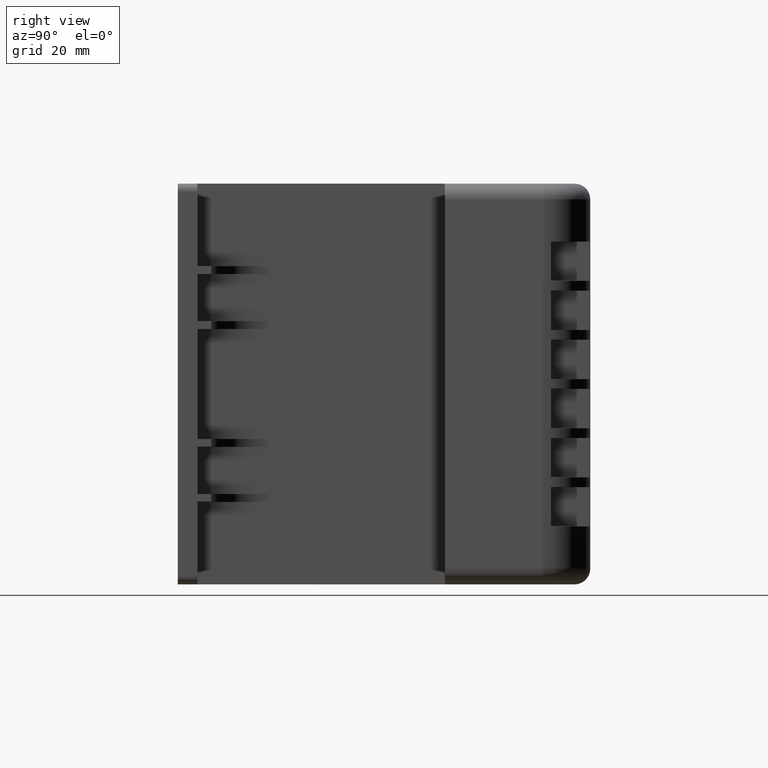
[diagram: clean part render]
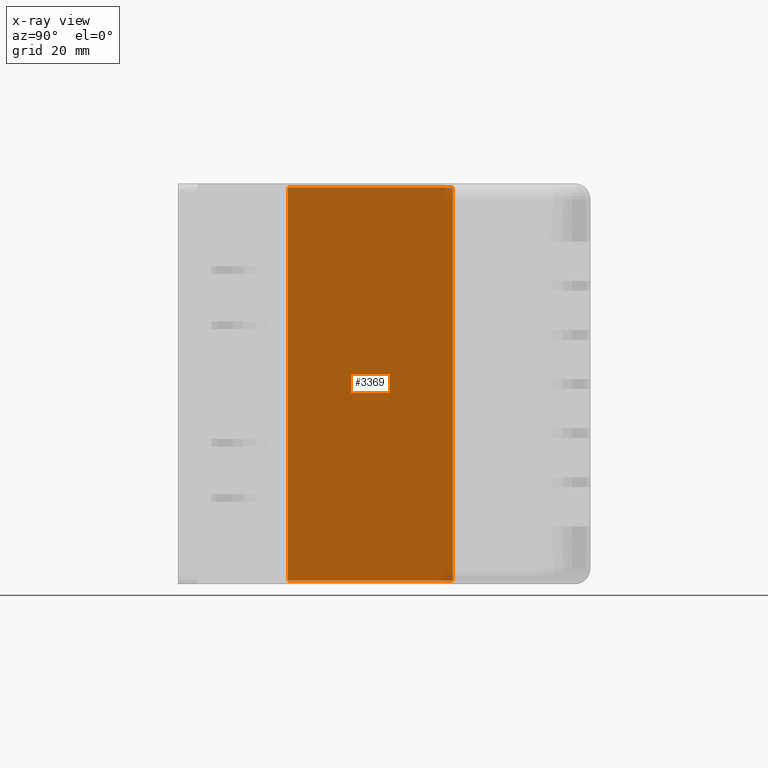
[diagram: x-ray — body ghosted, one internal face saturated and labeled with its STEP entity id]
A machine part, right view, then the same camera in x-ray: the body is ghosted and one INTERNAL B-rep face — a face not visible from any outside direction — is saturated and labeled: STEP entity #3369.
In plain terms, the highlighted planar face has unit normal (1, 0, -0).
Its self-contained STEP definition (entity closure, byte-faithful):
#330=FACE_OUTER_BOUND('',#539,.T.);
#539=EDGE_LOOP('',(#2444,#2445,#2446,#2447));
#837=LINE('',#5282,#1157);
#845=LINE('',#5297,#1165);
#846=LINE('',#5299,#1166);
#847=LINE('',#5300,#1167);
#1157=VECTOR('',#4312,10.);
#1165=VECTOR('',#4324,10.);
#1166=VECTOR('',#4327,10.);
#1167=VECTOR('',#4328,10.);
#1453=VERTEX_POINT('',#5279);
#1454=VERTEX_POINT('',#5281);
#1458=VERTEX_POINT('',#5293);
#1459=VERTEX_POINT('',#5295);
#1805=EDGE_CURVE('',#1453,#1454,#837,.T.);
#1813=EDGE_CURVE('',#1458,#1459,#845,.T.);
#1814=EDGE_CURVE('',#1453,#1458,#846,.T.);
#1815=EDGE_CURVE('',#1454,#1459,#847,.T.);
#2444=ORIENTED_EDGE('',*,*,#1814,.T.);
#2445=ORIENTED_EDGE('',*,*,#1813,.T.);
#2446=ORIENTED_EDGE('',*,*,#1815,.F.);
#2447=ORIENTED_EDGE('',*,*,#1805,.F.);
#2986=PLANE('',#3711);
#3369=ADVANCED_FACE('',(#330),#2986,.T.);
#3711=AXIS2_PLACEMENT_3D('',#5298,#4325,#4326);
#4312=DIRECTION('',(0.,1.,0.));
#4324=DIRECTION('',(0.,1.,0.));
#4325=DIRECTION('center_axis',(1.,0.,1.77635683940025E-16));
#4326=DIRECTION('ref_axis',(1.77635683940025E-16,0.,-1.));
#4327=DIRECTION('',(1.77635683940025E-16,0.,-1.));
#4328=DIRECTION('',(1.77635683940025E-16,0.,-1.));
#5279=CARTESIAN_POINT('',(-85.,0.,101.));
#5281=CARTESIAN_POINT('',(-85.,42.,101.));
#5282=CARTESIAN_POINT('',(-85.,0.,101.));
#5293=CARTESIAN_POINT('',(-85.,0.,0.999999999999991));
#5295=CARTESIAN_POINT('',(-85.,42.,0.999999999999991));
#5297=CARTESIAN_POINT('',(-85.,0.,0.999999999999991));
#5298=CARTESIAN_POINT('Origin',(-85.,0.,101.));
#5299=CARTESIAN_POINT('',(-85.,0.,101.));
#5300=CARTESIAN_POINT('',(-85.,42.,101.));